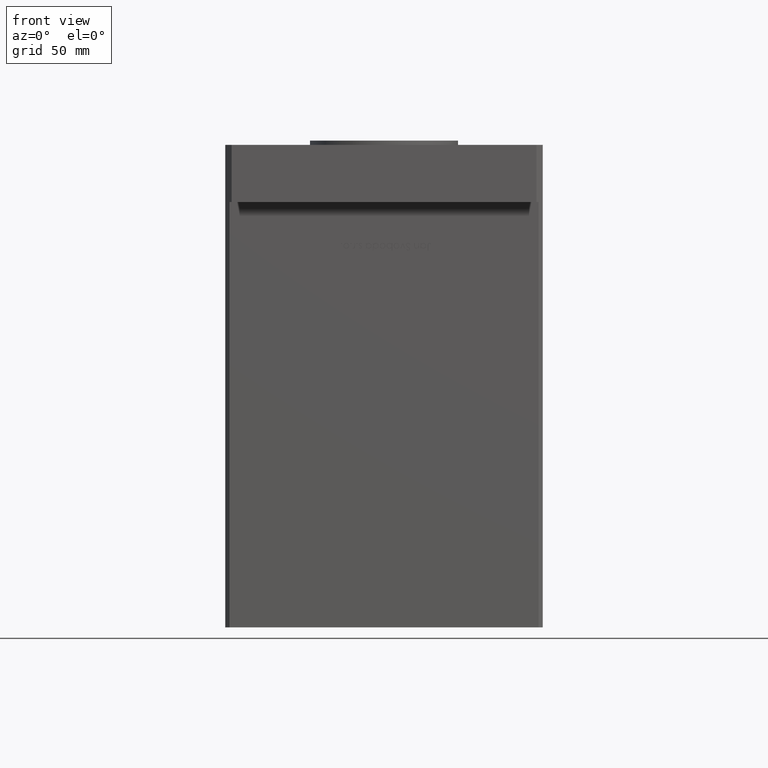
[diagram: clean part render]
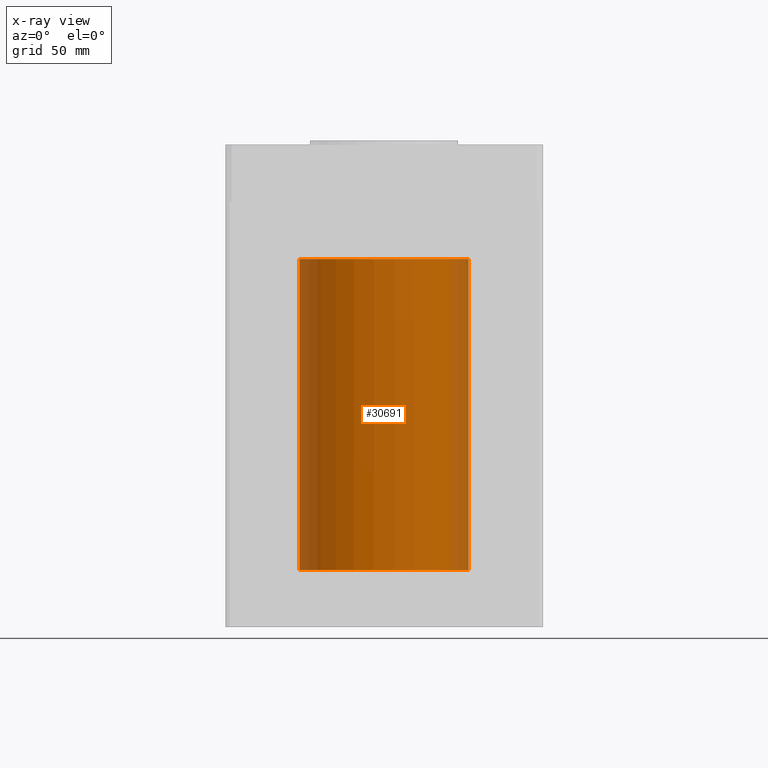
[diagram: x-ray — body ghosted, one internal face saturated and labeled with its STEP entity id]
A machine part, front view, then the same camera in x-ray: the body is ghosted and one INTERNAL B-rep face — a face not visible from any outside direction — is saturated and labeled: STEP entity #30691.
In plain terms, the highlighted cylindrical surface (partial cylindrical patch) has radius 40 mm, axis along (-0, -0, -1).
Its self-contained STEP definition (entity closure, byte-faithful):
#897 = DIRECTION ( 'NONE',  ( -1.000000000000000000, 0.000000000000000000, 0.000000000000000000 ) ) ;
#3205 = LINE ( 'NONE', #3467, #8391 ) ;
#3467 = CARTESIAN_POINT ( 'NONE',  ( -40.00000000000000000, 0.000000000000000000, 147.0000000000000000 ) ) ;
#5348 = CIRCLE ( 'NONE', #35610, 40.00000000000000000 ) ;
#5745 = ORIENTED_EDGE ( 'NONE', *, *, #9551, .F. ) ;
#7541 = DIRECTION ( 'NONE',  ( -0.000000000000000000, -0.000000000000000000, -1.000000000000000000 ) ) ;
#8391 = VECTOR ( 'NONE', #32189, 1000.000000000000000 ) ;
#9551 = EDGE_CURVE ( 'NONE', #21280, #18247, #35065, .T. ) ;
#9853 = CARTESIAN_POINT ( 'NONE',  ( 0.000000000000000000, 0.000000000000000000, 147.0000000000000000 ) ) ;
#12387 = LINE ( 'NONE', #40048, #22230 ) ;
#13057 = DIRECTION ( 'NONE',  ( 1.000000000000000000, 0.000000000000000000, 0.000000000000000000 ) ) ;
#14612 = ORIENTED_EDGE ( 'NONE', *, *, #14792, .F. ) ;
#14792 = EDGE_CURVE ( 'NONE', #30911, #21280, #3205, .T. ) ;
#14818 = EDGE_CURVE ( 'NONE', #33756, #18247, #12387, .T. ) ;
#16658 = CARTESIAN_POINT ( 'NONE',  ( 40.00000000000000000, 4.898587196589413026E-15, 147.0000000000000000 ) ) ;
#18247 = VERTEX_POINT ( 'NONE', #19427 ) ;
#19427 = CARTESIAN_POINT ( 'NONE',  ( 40.00000000000000000, 4.898587196589413026E-15, 0.000000000000000000 ) ) ;
#19905 = CARTESIAN_POINT ( 'NONE',  ( -40.00000000000000000, 0.000000000000000000, 0.000000000000000000 ) ) ;
#21280 = VERTEX_POINT ( 'NONE', #19905 ) ;
#21457 = CARTESIAN_POINT ( 'NONE',  ( 0.000000000000000000, 0.000000000000000000, 147.0000000000000000 ) ) ;
#22230 = VECTOR ( 'NONE', #7541, 1000.000000000000000 ) ;
#22777 = CARTESIAN_POINT ( 'NONE',  ( 0.000000000000000000, 0.000000000000000000, 0.000000000000000000 ) ) ;
#24983 = DIRECTION ( 'NONE',  ( -0.000000000000000000, 0.000000000000000000, 1.000000000000000000 ) ) ;
#26093 = DIRECTION ( 'NONE',  ( -0.000000000000000000, -0.000000000000000000, -1.000000000000000000 ) ) ;
#30691 = ADVANCED_FACE ( 'NONE', ( #33956 ), #30706, .F. ) ;
#30706 = CYLINDRICAL_SURFACE ( 'NONE', #40740, 40.00000000000000000 ) ;
#30911 = VERTEX_POINT ( 'NONE', #52897 ) ;
#32189 = DIRECTION ( 'NONE',  ( -0.000000000000000000, -0.000000000000000000, -1.000000000000000000 ) ) ;
#33756 = VERTEX_POINT ( 'NONE', #16658 ) ;
#33956 = FACE_OUTER_BOUND ( 'NONE', #43346, .T. ) ;
#34715 = DIRECTION ( 'NONE',  ( 1.000000000000000000, 0.000000000000000000, 0.000000000000000000 ) ) ;
#34983 = DIRECTION ( 'NONE',  ( -0.000000000000000000, 0.000000000000000000, 1.000000000000000000 ) ) ;
#35065 = CIRCLE ( 'NONE', #44590, 40.00000000000000000 ) ;
#35610 = AXIS2_PLACEMENT_3D ( 'NONE', #21457, #24983, #13057 ) ;
#40048 = CARTESIAN_POINT ( 'NONE',  ( 40.00000000000000000, 4.898587196589413026E-15, 147.0000000000000000 ) ) ;
#40740 = AXIS2_PLACEMENT_3D ( 'NONE', #9853, #26093, #897 ) ;
#43346 = EDGE_LOOP ( 'NONE', ( #44091, #45556, #5745, #14612 ) ) ;
#44091 = ORIENTED_EDGE ( 'NONE', *, *, #52185, .T. ) ;
#44590 = AXIS2_PLACEMENT_3D ( 'NONE', #22777, #34983, #34715 ) ;
#45556 = ORIENTED_EDGE ( 'NONE', *, *, #14818, .T. ) ;
#52185 = EDGE_CURVE ( 'NONE', #30911, #33756, #5348, .T. ) ;
#52897 = CARTESIAN_POINT ( 'NONE',  ( -40.00000000000000000, 0.000000000000000000, 147.0000000000000000 ) ) ;